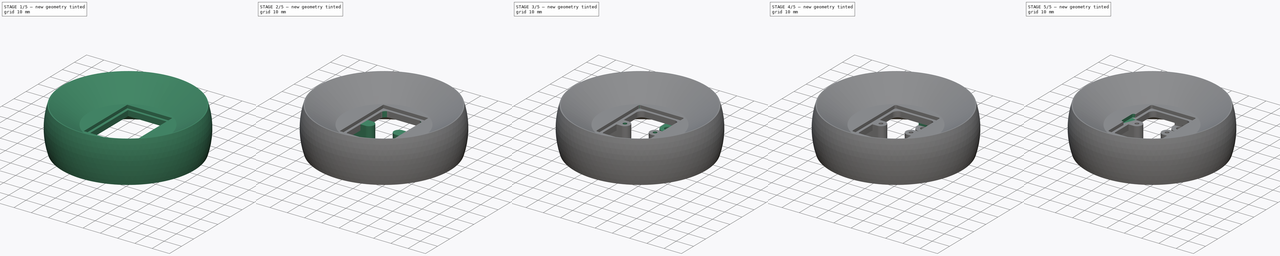
[diagram: build sequence overview — one tinted view per stage of 5, left to right]
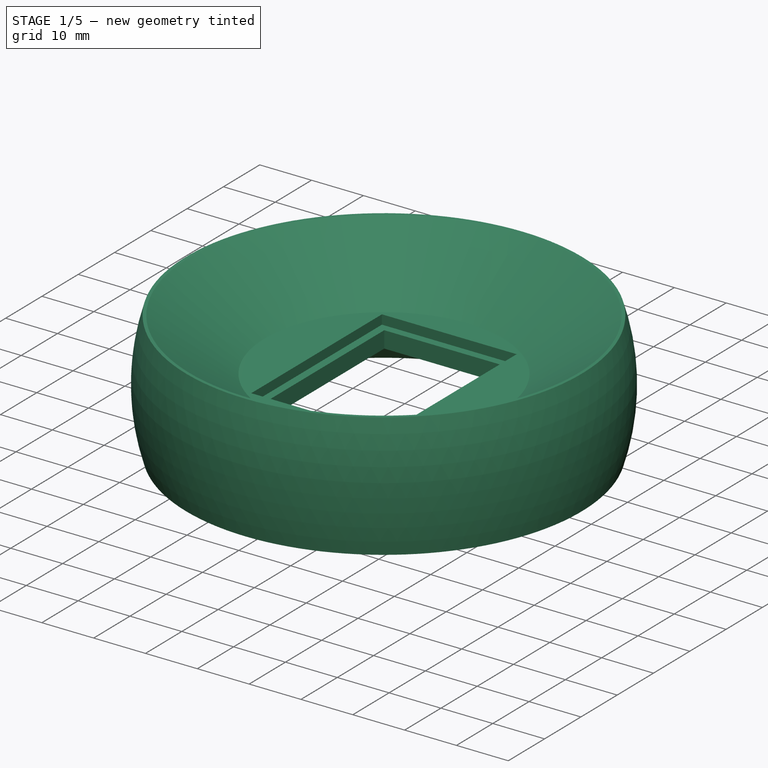
[diagram: stage 1 of 5 — iso view after this stage's code; geometry added in this stage tinted green]
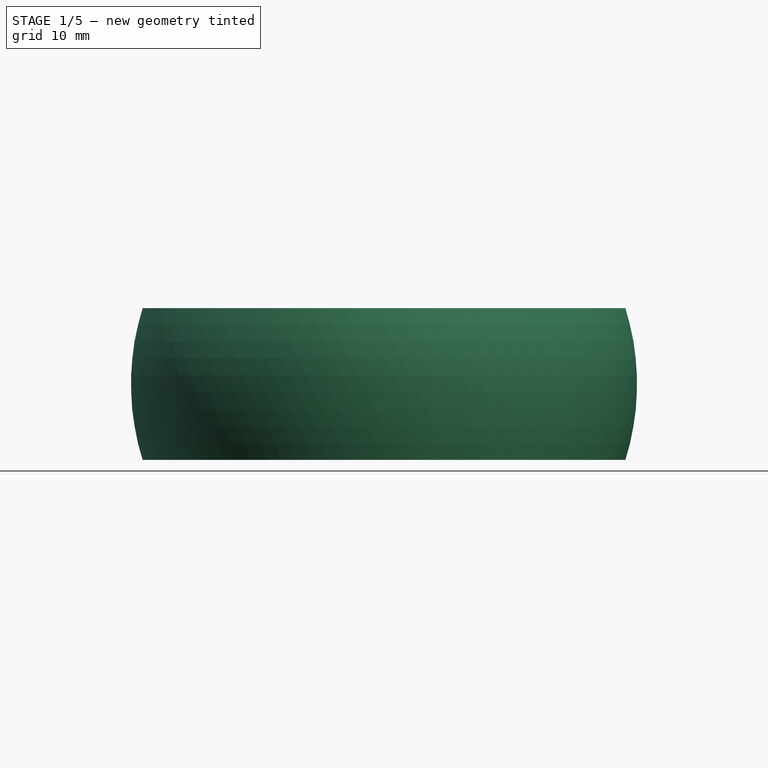
[diagram: stage 1 of 5 — front view after this stage's code; geometry added in this stage tinted green]
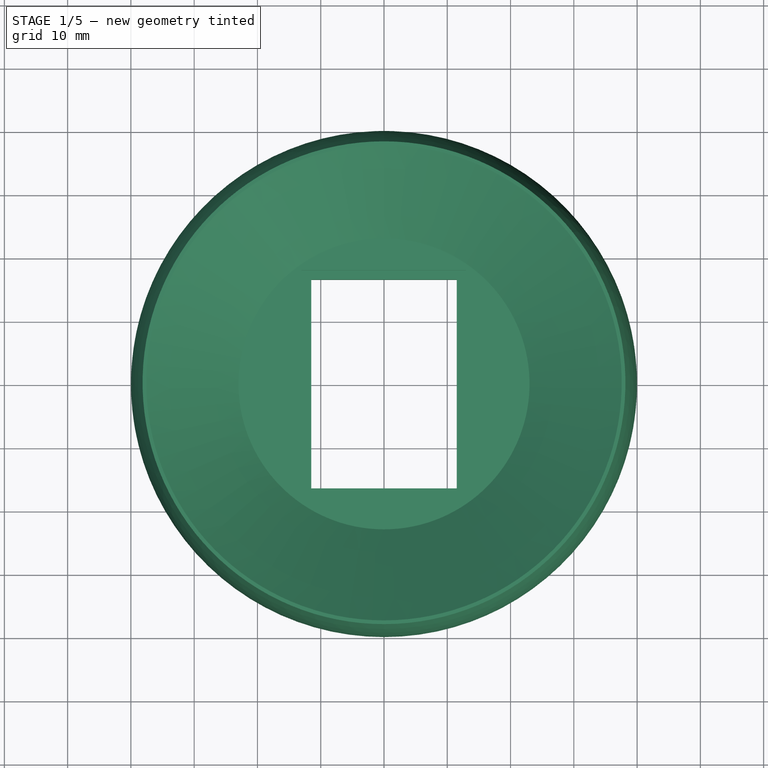
[diagram: stage 1 of 5 — top view after this stage's code; geometry added in this stage tinted green]
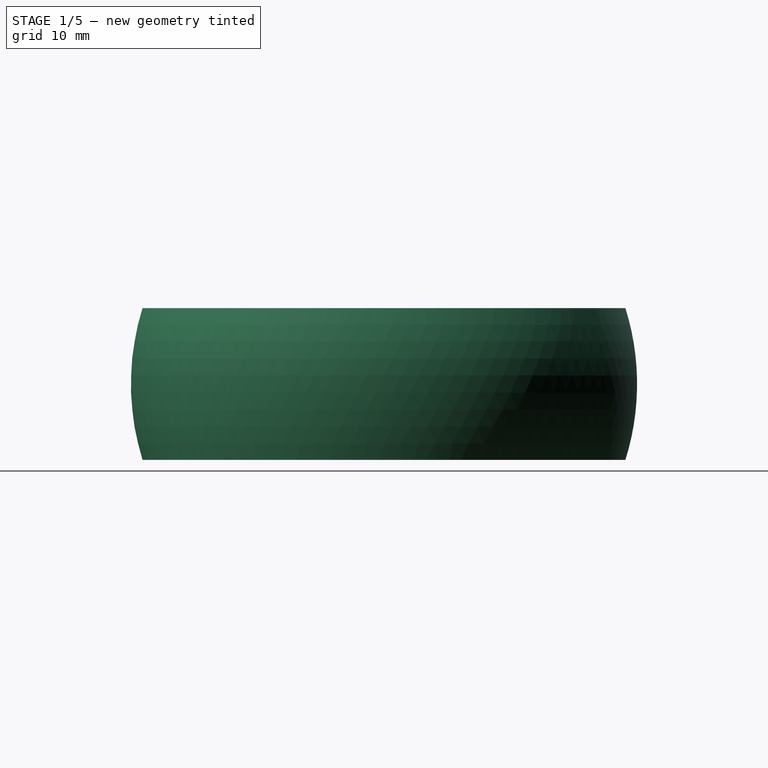
[diagram: stage 1 of 5 — right view after this stage's code; geometry added in this stage tinted green]
FCSTD DOCUMENT  (FreeCAD 1.0R39319 (Git))
Label: 5x2IRLED_Eyeball
License: All rights reserved
LicenseURL: https://en.wikipedia.org/wiki/All_rights_reserved
objects: Sketcher::SketchObject×9, PartDesign::Pocket×5, PartDesign::Fillet×4, PartDesign::Pad×3, PartDesign::Mirrored×2, PartDesign::CoordinateSystem×2, PartDesign::Revolution×1, PartDesign::Body×1, App::Part×1
note: 64 computed .brp shape members not serialized (recipe doc carries the construction recipe); baked Part::Feature solids carry a one-line shape summary decoded from their .brp

FEATURE [Sketcher::SketchObject] Sketch
  ArcFitTolerance = 1e-06
  AttachmentSupport = -> [YZ_Plane001]
  FullyConstrained = true
  MakeInternals = false
  MapMode = 5
  Placement = pos=(0,0,0) rot=(0.57735,0.57735,0.57735;2.0944rad)
  sketch-geometry (9):
    g0: ArcOfCircle CenterX=0 CenterY=0 CenterZ=0 NormalX=0 NormalY=0 NormalZ=1 AngleXU=0 Radius=40 StartAngle=5.97849 EndAngle=6.58788
    g1: LineSegment StartX=38.1576 StartY=12 StartZ=0 EndX=37.5671 EndY=12 EndZ=0
    g2: LineSegment StartX=37.5671 StartY=12 StartZ=0 EndX=23 EndY=1.8 EndZ=0
    g3: LineSegment StartX=23 StartY=1.8 StartZ=0 EndX=0 EndY=1.8 EndZ=0
    g4: LineSegment StartX=0 StartY=1.8 StartZ=0 EndX=0 EndY=-3.2 EndZ=0
    g5: LineSegment StartX=0 StartY=-3.2 StartZ=0 EndX=23 EndY=-3.2 EndZ=0
    g6: LineSegment StartX=23 StartY=-3.2 StartZ=0 EndX=35.5677 EndY=-12 EndZ=0
    g7: LineSegment StartX=35.5677 StartY=-12 StartZ=0 EndX=38.1576 EndY=-12 EndZ=0
    g8: LineSegment [constr] StartX=23 StartY=1.8 StartZ=0 EndX=23 EndY=-3.2 EndZ=0
  constraints (26):
    c: Coincident(g0,g-1)
    c: Radius(g0) = 40
    c: Coincident(g0,g1)
    c: Horizontal(g1)
    c: Coincident(g1,g2)
    c: Coincident(g2,g3)
    c: PointOnObject(g3,g-2)
    c: Horizontal(g3)
    c: Coincident(g3,g4)
    c: PointOnObject(g4,g-2)
    c: Coincident(g4,g5)
    c: Horizontal(g5)
    c: Coincident(g5,g6)
    c: Coincident(g6,g7)
    c: Coincident(g7,g0)
    c: Horizontal(g7)
    c: Distance(g7,g1) = 24
    c: DistanceX(g3,g3) = 23
    c: Coincident(g8,g2)
    c: Coincident(g8,g5)
    c: Vertical(g8)
    c: Distance(g5,g3) = 5
    c: Angle(g6,g7) = 0.610865
    c: Angle(g3,g2) = 0.610865
    c: Distance(g3,g-1) = 1.8
    c: Distance(g1,g-1) = 12
FEATURE [PartDesign::Revolution] Revolution
  Angle = 360
  Angle2 = 60
  Axis = (0,0,1)
  Base = (0,0,0)
  Placement = pos=(0,0,0) rot=(1,1,1;2.0944rad)
  Profile = -> Sketch
  ReferenceAxis = -> Sketch [V_Axis]
  Refine = true
  Reversed = true
  Suppressed = false
  Type = 0
FEATURE [Sketcher::SketchObject] Sketch001
  ArcFitTolerance = 1e-06
  AttachmentSupport = -> [Revolution]
  FullyConstrained = true
  MakeInternals = false
  MapMode = 5
  Placement = pos=(-4e-16,0,1.8) rot=(0,0,-1;1.5708rad)
  sketch-geometry (4):
    g0: LineSegment StartX=-18 StartY=13 StartZ=0 EndX=-18 EndY=-13 EndZ=0
    g1: LineSegment StartX=-18 StartY=-13 StartZ=0 EndX=18 EndY=-13 EndZ=0
    g2: LineSegment StartX=18 StartY=-13 StartZ=0 EndX=18 EndY=13 EndZ=0
    g3: LineSegment StartX=18 StartY=13 StartZ=0 EndX=-18 EndY=13 EndZ=0
  constraints (10):
    c: Coincident(g0,g1)
    c: Coincident(g1,g2)
    c: Coincident(g2,g3)
    c: Coincident(g3,g0)
    c: Vertical(g2)
    c: Horizontal(g1)
    c: Distance(g2,g0) = 36
    c: Distance(g3,g1) = 26
    c: Symmetric(g0,g2,g-2)
    c: Symmetric(g0,g0,g-1)
FEATURE [PartDesign::Pocket] Pocket
  BaseFeature = -> Revolution
  Direction = (0,0,-1)
  Length = 1.8
  Length2 = 5
  Placement = pos=(0,0,0) rot=(1,1,1;2.0944rad)
  Profile = -> Sketch001
  ReferenceAxis = -> Sketch001 [N_Axis]
  Refine = true
  Suppressed = false
  Type = 0
FEATURE [Sketcher::SketchObject] Sketch002
  ArcFitTolerance = 1e-06
  AttachmentSupport = -> [Pocket]
  ExternalGeometry = -> [Pocket]
  FullyConstrained = true
  MakeInternals = false
  MapMode = 5
  Placement = pos=(0,0,-4.4e-15) rot=(0,0,-1;1.5708rad)
  sketch-geometry (5):
    g0: LineSegment StartX=-16.5 StartY=11.5 StartZ=0 EndX=-16.5 EndY=-11.5 EndZ=0
    g1: LineSegment StartX=-16.5 StartY=-11.5 StartZ=0 EndX=16.5 EndY=-11.5 EndZ=0
    g2: LineSegment StartX=16.5 StartY=-11.5 StartZ=0 EndX=16.5 EndY=11.5 EndZ=0
    g3: LineSegment StartX=16.5 StartY=11.5 StartZ=0 EndX=-16.5 EndY=11.5 EndZ=0
    g4: Circle [constr] CenterX=13.5 CenterY=0 CenterZ=0 NormalX=0 NormalY=0 NormalZ=1 AngleXU=0 Radius=2.5
  constraints (15):
    c: Coincident(g0,g1)
    c: Coincident(g1,g2)
    c: Coincident(g2,g3)
    c: Coincident(g3,g0)
    c: Vertical(g0)
    c: Vertical(g2)
    c: Horizontal(g1)
    c: Horizontal(g3)
    c: Distance(g0,g-6) = 1.5
    c: Distance(g-4,g2) = 1.5
    c: Distance(g-3,g3) = 1.5
    c: Distance(g-5,g1) = 1.5
    c: PointOnObject(g4,g-1)
    c: DistanceX(g-1,g4) = 13.5
    c: Diameter(g4) = 5
FEATURE [PartDesign::Pocket] Pocket001
  BaseFeature = -> Pocket
  Direction = (0,0,-1)
  Length = 5
  Length2 = 5
  Placement = pos=(0,0,0) rot=(1,1,1;2.0944rad)
  Profile = -> Sketch002
  ReferenceAxis = -> Sketch002 [N_Axis]
  Refine = true
  Suppressed = false
  Type = 1
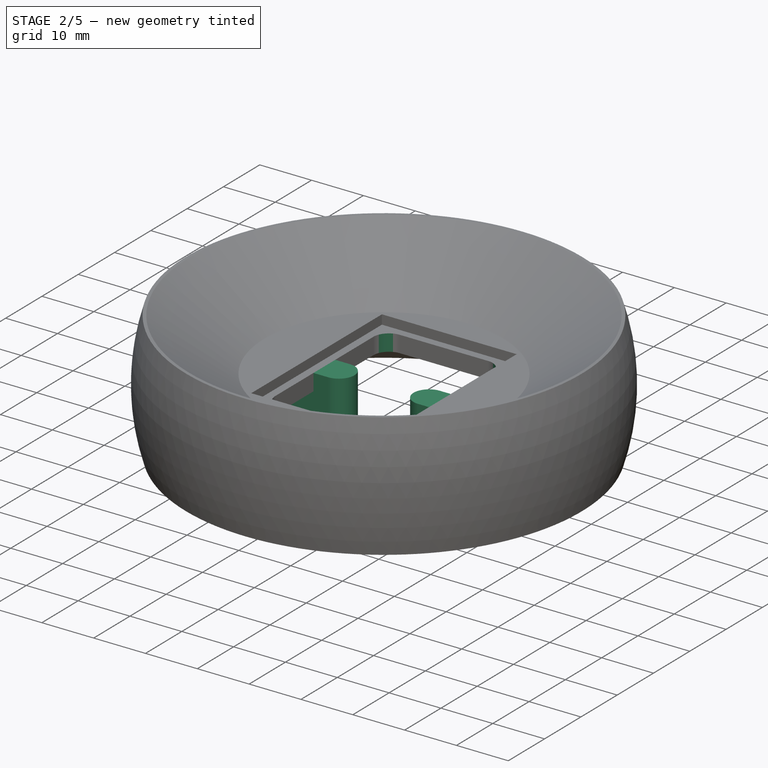
[diagram: stage 2 of 5 — iso view after this stage's code; geometry added in this stage tinted green]
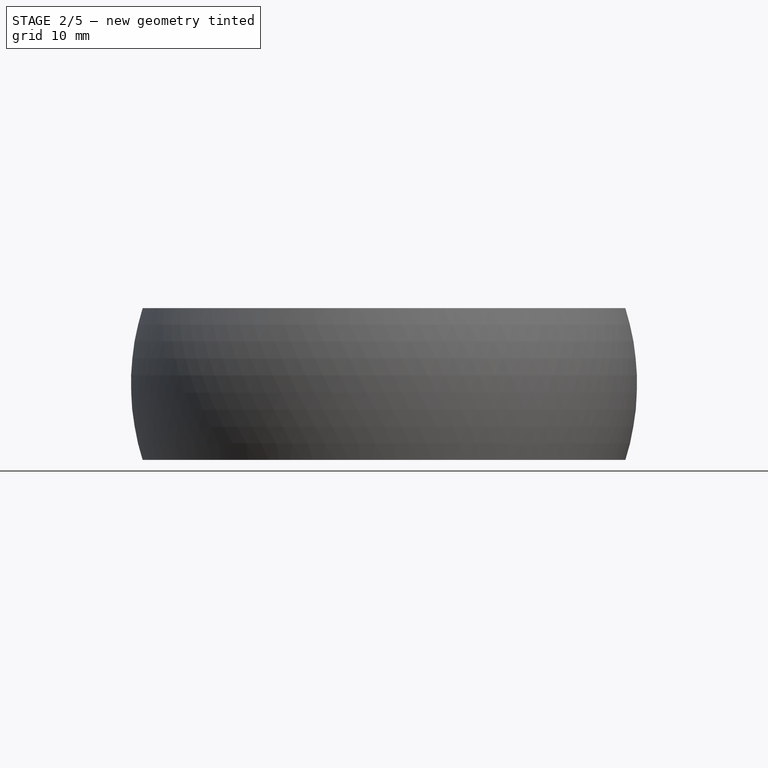
[diagram: stage 2 of 5 — front view after this stage's code; geometry added in this stage tinted green]
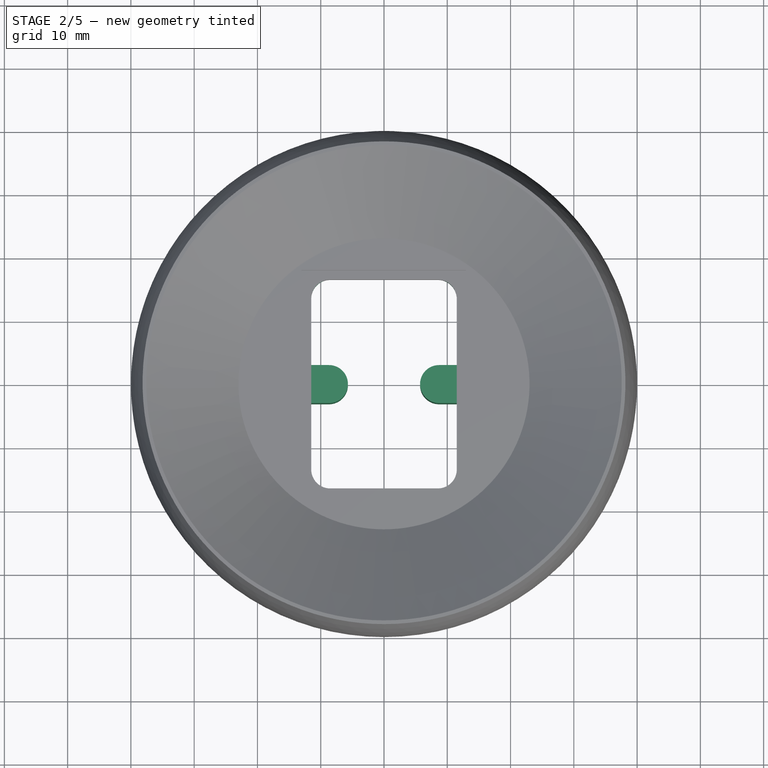
[diagram: stage 2 of 5 — top view after this stage's code; geometry added in this stage tinted green]
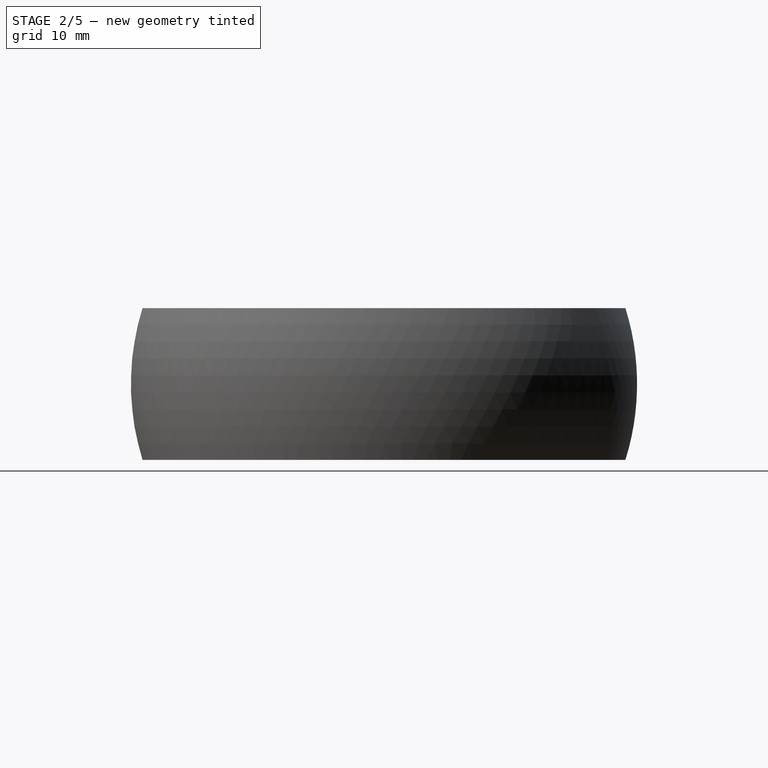
[diagram: stage 2 of 5 — right view after this stage's code; geometry added in this stage tinted green]
FEATURE [Sketcher::SketchObject] Sketch003
  ArcFitTolerance = 1e-06
  AttachmentSupport = -> [Pocket001]
  ExternalGeometry = -> [Pocket001]
  FullyConstrained = true
  MakeInternals = false
  MapMode = 5
  Placement = pos=(0,0,-4.4e-15) rot=(0,0,-1;1.5708rad)
  sketch-geometry (4):
    g0: LineSegment StartX=3 StartY=35.441 StartZ=0 EndX=3 EndY=8.7 EndZ=0
    g1: ArcOfCircle CenterX=0 CenterY=8.7 CenterZ=0 NormalX=0 NormalY=0 NormalZ=1 AngleXU=0 Radius=3 StartAngle=3.14159 EndAngle=6.28319
    g2: LineSegment StartX=-3 StartY=8.7 StartZ=0 EndX=-3 EndY=35.441 EndZ=0
    g3: ArcOfCircle CenterX=5.6e-15 CenterY=6.38282e-05 CenterZ=0 NormalX=0 NormalY=0 NormalZ=1 AngleXU=0 Radius=35.5676 StartAngle=1.48635 EndAngle=1.65524
  constraints (12):
    c: Vertical(g0)
    c: Tangent(g0,g1) = 1.5708
    c: Tangent(g1,g2) = 1.5708
    c: Vertical(g2)
    c: Radius(g1) = 3
    c: DistanceY(g-1,g1) = 8.7
    c: PointOnObject(g1,g-2)
    c: Coincident(g3,g2)
    c: Coincident(g3,g0)
    c: Tangent(g3,g-3)
    c: PointOnObject(g0,g-3)
    c: PointOnObject(g2,g-3)
FEATURE [PartDesign::Pad] Pad
  BaseFeature = -> Pocket001
  Direction = (0,0,1)
  Length = 10
  Length2 = 10
  Placement = pos=(0,0,0) rot=(1,1,1;2.0944rad)
  Profile = -> Sketch003
  ReferenceAxis = -> Sketch003 [N_Axis]
  Refine = true
  Reversed = true
  Suppressed = false
  Type = 3
  UpToFace = -> Pocket001 [Face2]
FEATURE [PartDesign::Mirrored] Mirrored
  BaseFeature = -> Pad
  MirrorPlane = -> YZ_Plane001
  Originals = -> [Pad]
  Placement = pos=(0,0,0) rot=(1,1,1;2.0944rad)
  Refine = true
  Suppressed = false
  TransformMode = 0
FEATURE [PartDesign::Fillet] Fillet
  Base = -> Mirrored [Edge68,Edge65,Edge56,Edge46]
  BaseFeature = -> Mirrored
  Placement = pos=(0,0,0) rot=(1,1,1;2.0944rad)
  Radius = 3
  Refine = true
  SupportTransform = false
  Suppressed = false
  UseAllEdges = false
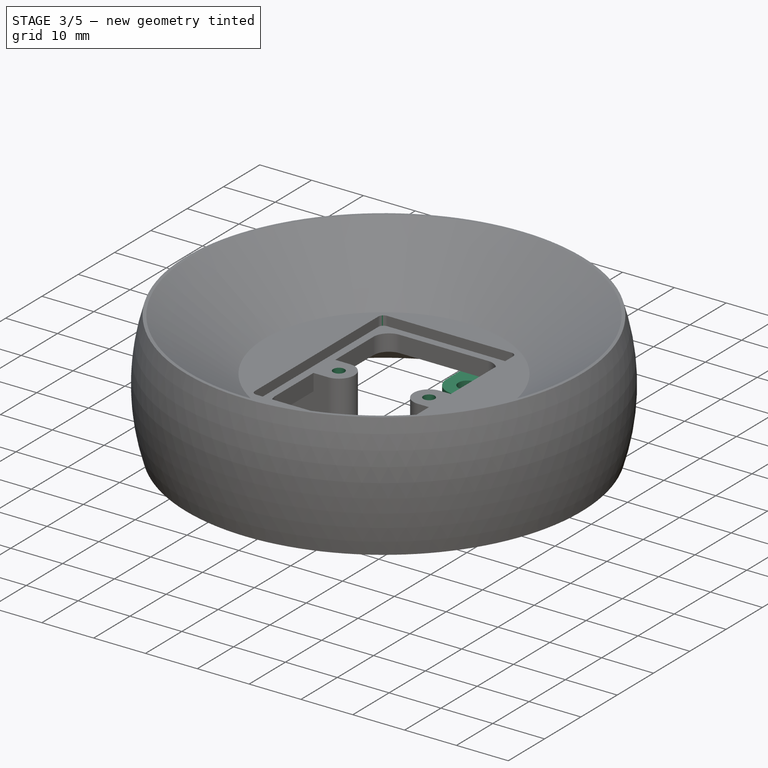
[diagram: stage 3 of 5 — iso view after this stage's code; geometry added in this stage tinted green]
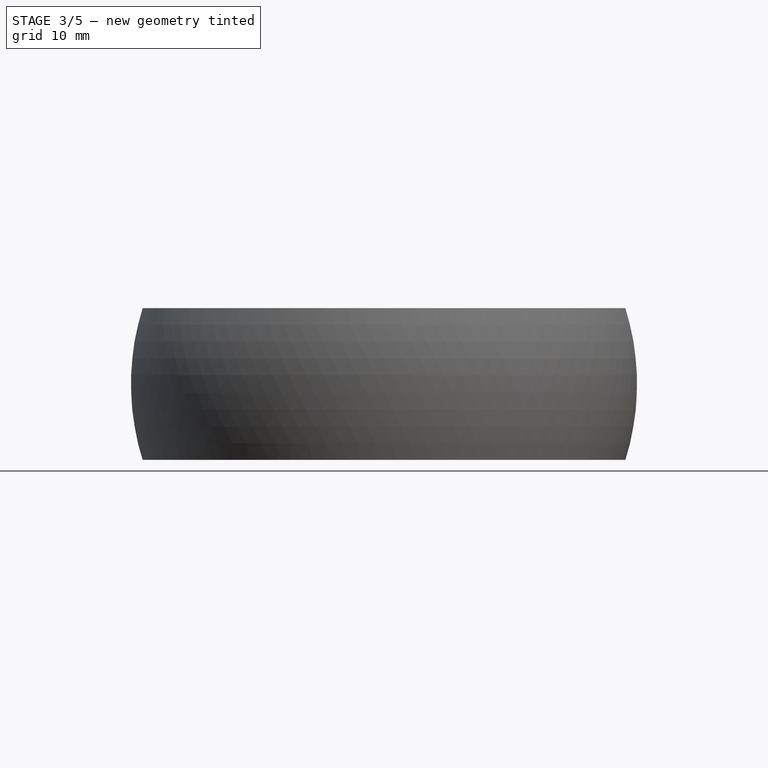
[diagram: stage 3 of 5 — front view after this stage's code; geometry added in this stage tinted green]
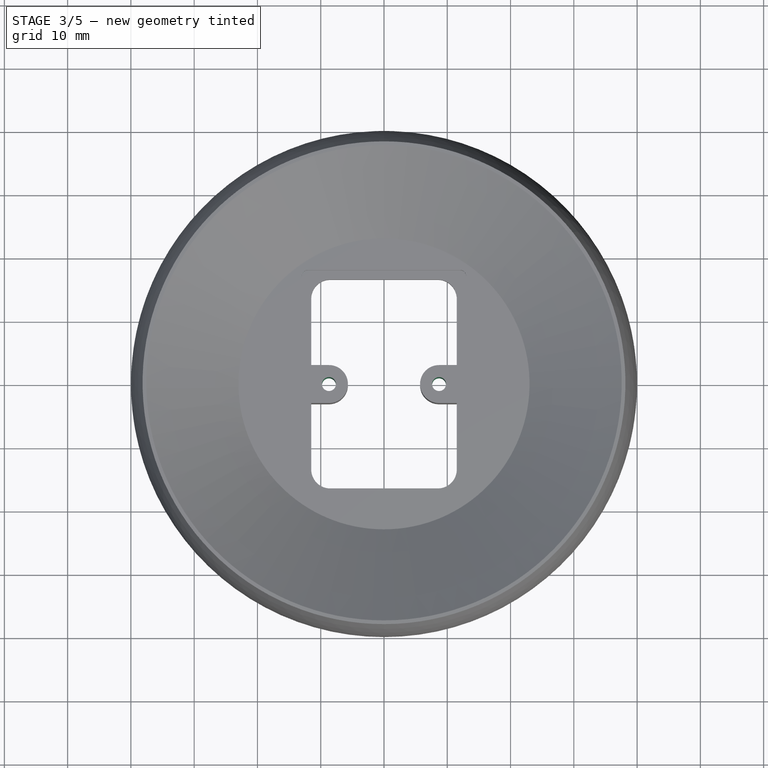
[diagram: stage 3 of 5 — top view after this stage's code; geometry added in this stage tinted green]
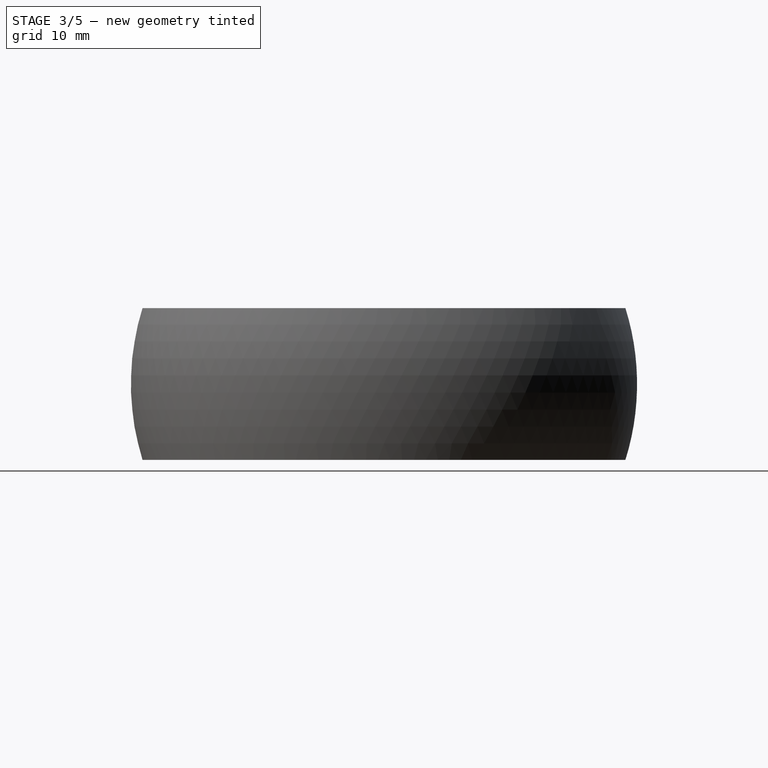
[diagram: stage 3 of 5 — right view after this stage's code; geometry added in this stage tinted green]
FEATURE [PartDesign::Fillet] Fillet001
  Base = -> Fillet [Edge64,Edge63,Edge68,Edge66]
  BaseFeature = -> Fillet
  Placement = pos=(0,0,0) rot=(1,1,1;2.0944rad)
  Radius = 1
  Refine = true
  SupportTransform = false
  Suppressed = false
  UseAllEdges = false
FEATURE [Sketcher::SketchObject] Sketch004
  ArcFitTolerance = 1e-06
  AttachmentSupport = -> [Fillet001]
  ExternalGeometry = -> [Fillet001]
  FullyConstrained = true
  MakeInternals = false
  MapMode = 5
  Placement = pos=(0,0,-4.4e-15) rot=(0,0,-1;1.5708rad)
  sketch-geometry (2):
    g0: Circle CenterX=0 CenterY=8.7 CenterZ=0 NormalX=0 NormalY=0 NormalZ=1 AngleXU=0 Radius=1.1
    g1: Circle CenterX=0 CenterY=-8.7 CenterZ=0 NormalX=0 NormalY=0 NormalZ=1 AngleXU=0 Radius=1.1
  constraints (4):
    c: Coincident(g0,g-3)
    c: Coincident(g1,g-4)
    c: Diameter(g0) = 2.2
    c: Diameter(g1) = 2.2
FEATURE [PartDesign::Pocket] Pocket002
  BaseFeature = -> Fillet001
  Direction = (0,0,-1)
  Length = 5
  Length2 = 5
  Placement = pos=(0,0,0) rot=(1,1,1;2.0944rad)
  Profile = -> Sketch004
  ReferenceAxis = -> Sketch004 [N_Axis]
  Refine = true
  Suppressed = false
  Type = 1
FEATURE [Sketcher::SketchObject] Sketch005
  ArcFitTolerance = 1e-06
  AttachmentSupport = -> [Pocket002]
  ExternalGeometry = -> [Pocket002]
  FullyConstrained = true
  MakeInternals = false
  MapMode = 5
  Placement = pos=(2.6e-15,0,-12) rot=(0.707107,0.707107,0;3.14159rad)
  sketch-geometry (6):
    g0: LineSegment StartX=35.5677 StartY=-1.363e-13 StartZ=0 EndX=24.75 EndY=-1.363e-13 EndZ=0
    g1: ArcOfCircle CenterX=23 CenterY=0 CenterZ=0 NormalX=0 NormalY=0 NormalZ=1 AngleXU=0 Radius=1.75 StartAngle=1.0472 EndAngle=6.28319
    g2: LineSegment StartX=23.875 StartY=1.51554 StartZ=0 EndX=25 EndY=3.4641 EndZ=0
    g3: ArcOfCircle CenterX=23 CenterY=0 CenterZ=0 NormalX=0 NormalY=0 NormalZ=1 AngleXU=0 Radius=4 StartAngle=1.0472 EndAngle=4.71239
    g4: LineSegment StartX=23 StartY=-4 StartZ=0 EndX=35.3421 EndY=-4 EndZ=0
    g5: ArcOfCircle CenterX=9.30302e-06 CenterY=-5.24781e-07 CenterZ=0 NormalX=0 NormalY=0 NormalZ=1 AngleXU=0 Radius=35.5677 StartAngle=6.17049 EndAngle=6.28319
  constraints (17):
    c: Horizontal(g0)
    c: Perpendicular(g0,g1) = 4.71239
    c: Coincident(g1,g2)
    c: Perpendicular(g2,g3) = 1.5708
    c: Horizontal(g4)
    c: Coincident(g1,g3)
    c: PointOnObject(g0,g-3)
    c: PointOnObject(g4,g-3)
    c: Radius(g1) = 1.75
    c: Radius(g3) = 4
    c: PointOnObject(g1,g-1)
    c: Tangent(g3,g4) = -1.5708
    c: Angle(g0,g2) = 1.0472
    c: DistanceX(g-1,g1) = 23
    c: Coincident(g5,g0)
    c: Coincident(g5,g4)
    c: Tangent(g5,g-3)
FEATURE [PartDesign::Pad] Pad001
  BaseFeature = -> Pocket002
  Direction = (1.7e-15,0,-1)
  Length = 3
  Length2 = 10
  Placement = pos=(0,0,0) rot=(1,1,1;2.0944rad)
  Profile = -> Sketch005
  ReferenceAxis = -> Sketch005 [N_Axis]
  Refine = true
  Reversed = true
  Suppressed = false
  Type = 0
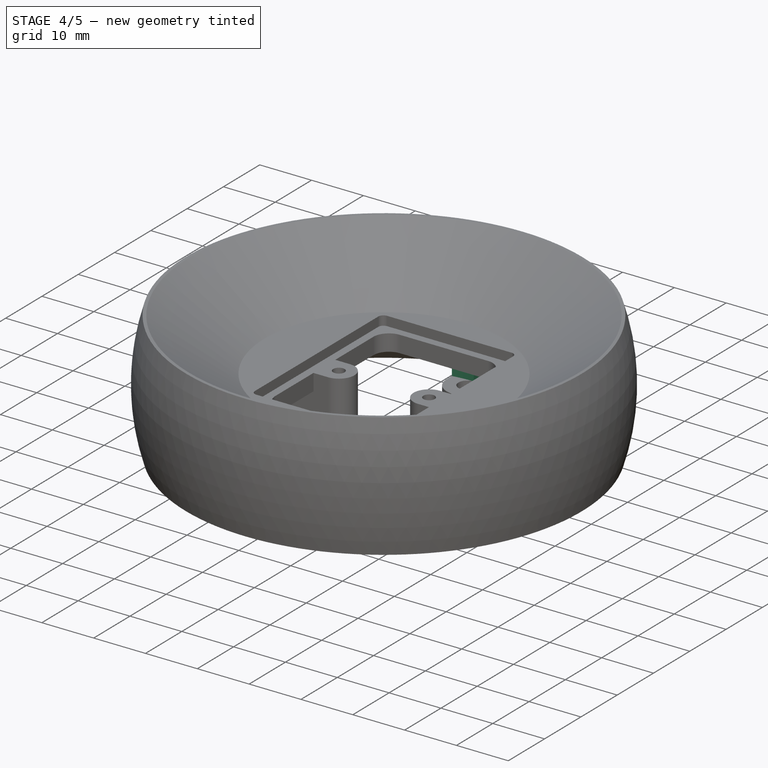
[diagram: stage 4 of 5 — iso view after this stage's code; geometry added in this stage tinted green]
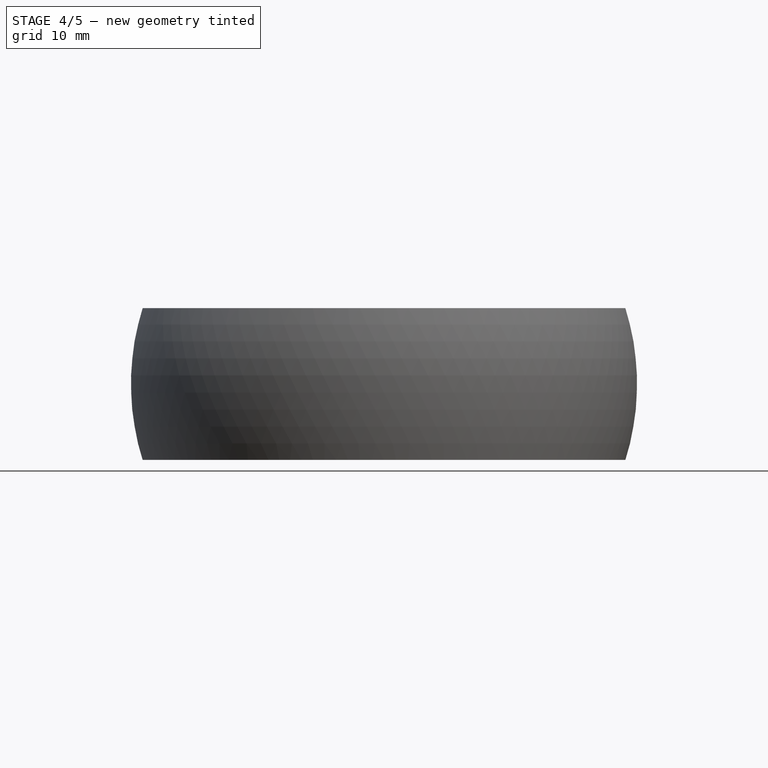
[diagram: stage 4 of 5 — front view after this stage's code; geometry added in this stage tinted green]
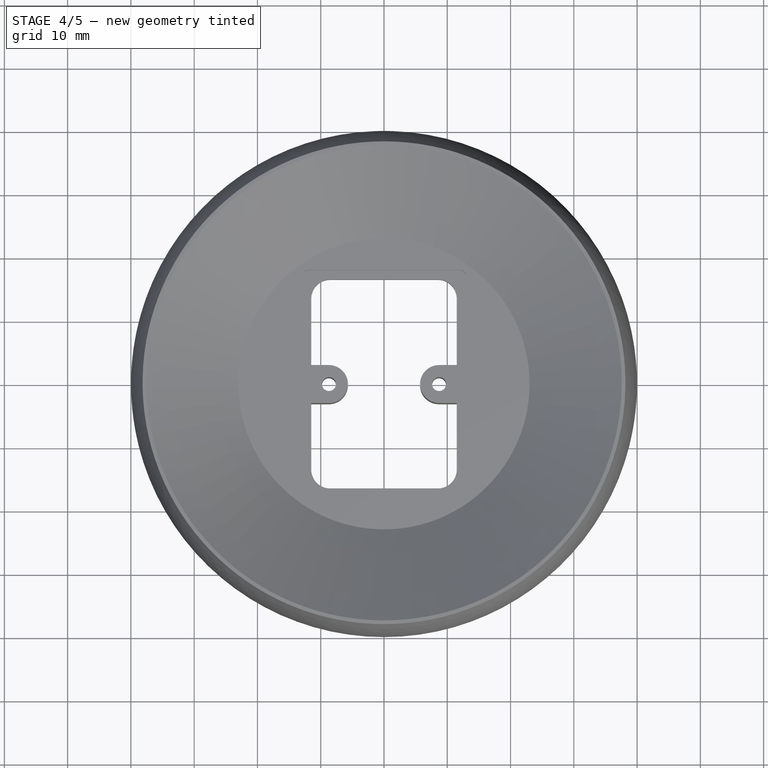
[diagram: stage 4 of 5 — top view after this stage's code; geometry added in this stage tinted green]
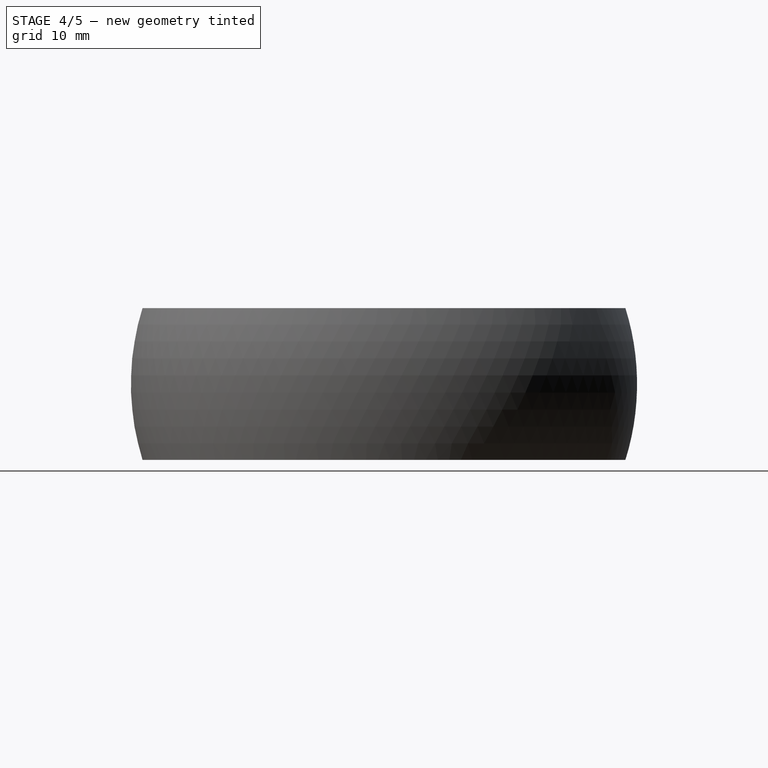
[diagram: stage 4 of 5 — right view after this stage's code; geometry added in this stage tinted green]
FEATURE [Sketcher::SketchObject] Sketch006
  ArcFitTolerance = 1e-06
  AttachmentSupport = -> [Pad001]
  ExternalGeometry = -> [Pad001]
  FullyConstrained = true
  MakeInternals = false
  MapMode = 5
  Placement = pos=(1.55e-14,0,-9) rot=(0,0,-1;1.5708rad)
  sketch-geometry (4):
    g0: LineSegment StartX=-24.75 StartY=-1.246e-13 StartZ=0 EndX=-31.2833 EndY=-1.228e-13 EndZ=0
    g1: ArcOfCircle CenterX=-4.4234e-12 CenterY=-1.386e-13 CenterZ=0 NormalX=0 NormalY=0 NormalZ=1 AngleXU=0 Radius=31.2833 StartAngle=3.14159 EndAngle=3.26981
    g2: LineSegment StartX=-31.0265 StartY=-4 StartZ=0 EndX=-24.4246 EndY=-4 EndZ=0
    g3: ArcOfCircle CenterX=-4.4234e-12 CenterY=-1.386e-13 CenterZ=0 NormalX=0 NormalY=0 NormalZ=1 AngleXU=0 Radius=24.75 StartAngle=3.14159 EndAngle=3.30392
  constraints (9):
    c: Coincident(g-4,g0)
    c: Coincident(g0,g-4)
    c: Perpendicular(g0,g1) = 1.5708
    c: Coincident(g1,g-5)
    c: Coincident(g1,g2)
    c: PointOnObject(g2,g-5)
    c: Coincident(g3,g2)
    c: Coincident(g3,g0)
    c: Coincident(g3,g1)
FEATURE [PartDesign::Pad] Pad002
  BaseFeature = -> Pad001
  Direction = (-2e-15,0,1)
  Length = 10
  Length2 = 10
  Placement = pos=(0,0,0) rot=(1,1,1;2.0944rad)
  Profile = -> Sketch006
  ReferenceAxis = -> Sketch006 [N_Axis]
  Refine = true
  Suppressed = false
  Type = 3
  UpToFace = -> Pad001 [Face33]
FEATURE [PartDesign::Mirrored] Mirrored001
  BaseFeature = -> Pad002
  MirrorPlane = -> XZ_Plane001
  Originals = -> [Pad001,Pad002]
  Placement = pos=(0,0,0) rot=(1,1,1;2.0944rad)
  Refine = true
  Suppressed = false
  TransformMode = 0
FEATURE [PartDesign::Fillet] Fillet002
  Base = -> Mirrored001 [Edge90,Edge5]
  BaseFeature = -> Mirrored001
  Placement = pos=(0,0,0) rot=(1,1,1;2.0944rad)
  Radius = 1
  Refine = true
  SupportTransform = false
  Suppressed = false
  UseAllEdges = false
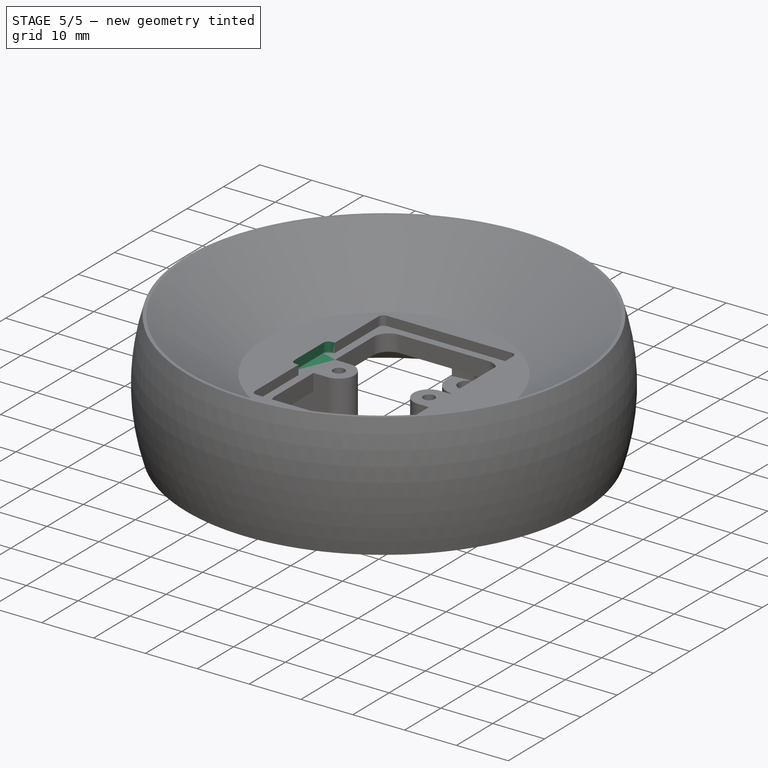
[diagram: stage 5 of 5 — iso view after this stage's code; geometry added in this stage tinted green]
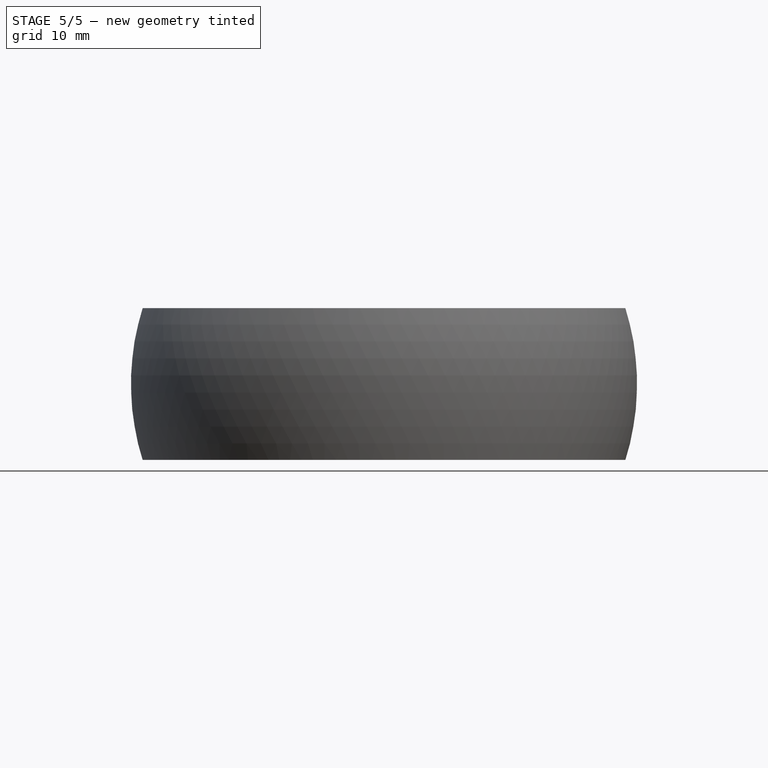
[diagram: stage 5 of 5 — front view after this stage's code; geometry added in this stage tinted green]
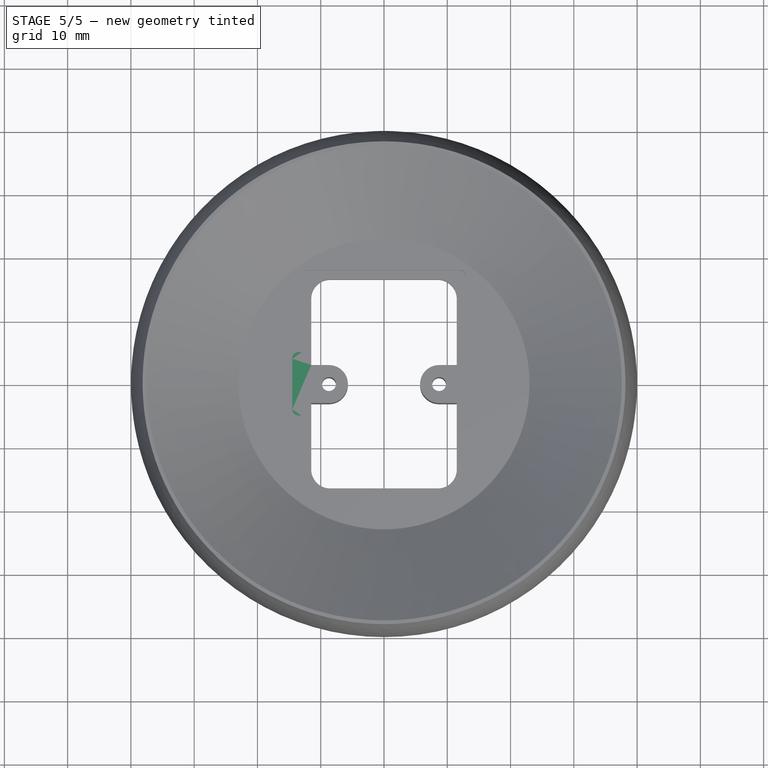
[diagram: stage 5 of 5 — top view after this stage's code; geometry added in this stage tinted green]
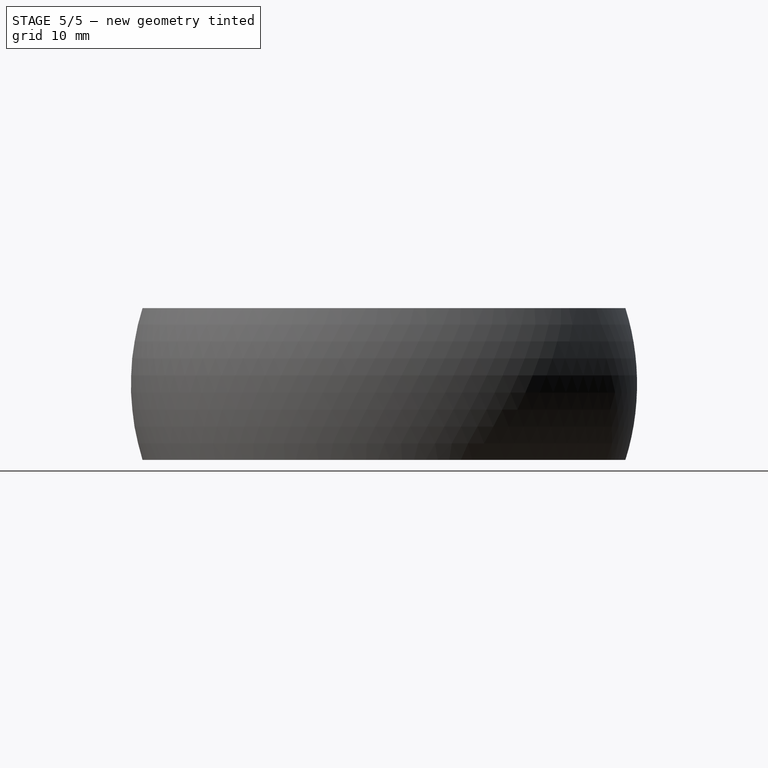
[diagram: stage 5 of 5 — right view after this stage's code; geometry added in this stage tinted green]
FEATURE [Sketcher::SketchObject] Sketch007
  ArcFitTolerance = 1e-06
  AttachmentSupport = -> [Fillet002]
  ExternalGeometry = -> [Fillet002]
  FullyConstrained = true
  MakeInternals = false
  MapMode = 5
  Placement = pos=(-4e-16,0,1.8) rot=(0,0,-1;1.5708rad)
  sketch-geometry (4):
    g0: LineSegment StartX=-5 StartY=-13 StartZ=0 EndX=-5 EndY=-14.5 EndZ=0
    g1: LineSegment StartX=-5 StartY=-14.5 StartZ=0 EndX=5 EndY=-14.5 EndZ=0
    g2: LineSegment StartX=5 StartY=-14.5 StartZ=0 EndX=5 EndY=-13 EndZ=0
    g3: LineSegment StartX=5 StartY=-13 StartZ=0 EndX=-5 EndY=-13 EndZ=0
  constraints (11):
    c: Coincident(g0,g1)
    c: Coincident(g1,g2)
    c: Coincident(g2,g3)
    c: Coincident(g3,g0)
    c: Vertical(g0)
    c: Vertical(g2)
    c: Horizontal(g1)
    c: PointOnObject(g0,g-3)
    c: Distance(g2,g0) = 10
    c: Distance(g3,g1) = 1.5
    c: Symmetric(g0,g2,g-2)
FEATURE [PartDesign::Pocket] Pocket003
  BaseFeature = -> Fillet002
  Direction = (2.3e-15,0,-1)
  Length = 0
  Length2 = 5
  Placement = pos=(0,0,0) rot=(1,1,1;2.0944rad)
  Profile = -> Sketch007
  ReferenceAxis = -> Sketch007 [N_Axis]
  Refine = true
  Suppressed = false
  Type = 3
  UpToFace = -> Fillet002 [Face30]
FEATURE [PartDesign::Fillet] Fillet003
  Base = -> Pocket003 [Edge154,Edge157]
  BaseFeature = -> Pocket003
  Placement = pos=(0,0,0) rot=(1,1,1;2.0944rad)
  Radius = 1
  Refine = true
  SupportTransform = false
  Suppressed = false
  UseAllEdges = false
FEATURE [Sketcher::SketchObject] Sketch008
  ArcFitTolerance = 1e-06
  AttachmentSupport = -> [Fillet003]
  ExternalGeometry = -> [Fillet003]
  FullyConstrained = true
  MakeInternals = false
  MapMode = 5
  Placement = pos=(2.6e-15,0,-12) rot=(0.707107,0.707107,0;3.14159rad)
  sketch-geometry (20):
    g0: LineSegment StartX=-30.25 StartY=-1.75 StartZ=0 EndX=-30.25 EndY=-0.75 EndZ=0
    g1: LineSegment StartX=-30.25 StartY=-0.75 StartZ=0 EndX=-29.75 EndY=-0.75 EndZ=0
    g2: LineSegment StartX=-29.75 StartY=-0.75 StartZ=0 EndX=-29.75 EndY=-1.75 EndZ=0
    g3: LineSegment StartX=-29.75 StartY=-1.75 StartZ=0 EndX=-28.75 EndY=-1.75 EndZ=0
    g4: LineSegment StartX=-28.75 StartY=-1.75 StartZ=0 EndX=-28.75 EndY=-2.25 EndZ=0
    g5: LineSegment StartX=-28.75 StartY=-2.25 StartZ=0 EndX=-29.75 EndY=-2.25 EndZ=0
    g6: LineSegment StartX=-29.75 StartY=-2.25 StartZ=0 EndX=-29.75 EndY=-3.25 EndZ=0
    g7: LineSegment StartX=-29.75 StartY=-3.25 StartZ=0 EndX=-30.25 EndY=-3.25 EndZ=0
    g8: LineSegment StartX=-30.25 StartY=-3.25 StartZ=0 EndX=-30.25 EndY=-2.25 EndZ=0
    g9: LineSegment StartX=-30.25 StartY=-2.25 StartZ=0 EndX=-31.25 EndY=-2.25 EndZ=0
    g10: LineSegment StartX=-31.25 StartY=-2.25 StartZ=0 EndX=-31.25 EndY=-1.75 EndZ=0
    g11: LineSegment StartX=-31.25 StartY=-1.75 StartZ=0 EndX=-30.25 EndY=-1.75 EndZ=0
    g12: LineSegment [constr] StartX=-31.25 StartY=-2 StartZ=0 EndX=-28.75 EndY=-2 EndZ=0
    g13: LineSegment [constr] StartX=-30 StartY=-0.75 StartZ=0 EndX=-30 EndY=-3.25 EndZ=0
    g14: LineSegment StartX=28.75 StartY=-1.75 StartZ=0 EndX=28.75 EndY=-2.25 EndZ=0
    g15: LineSegment StartX=28.75 StartY=-2.25 StartZ=0 EndX=31.25 EndY=-2.25 EndZ=0
    g16: LineSegment StartX=31.25 StartY=-2.25 StartZ=0 EndX=31.25 EndY=-1.75 EndZ=0
    g17: LineSegment StartX=31.25 StartY=-1.75 StartZ=0 EndX=28.75 EndY=-1.75 EndZ=0
    g18: LineSegment [constr] StartX=30 StartY=-1.75 StartZ=0 EndX=30 EndY=-2.25 EndZ=0
    g19: LineSegment [constr] StartX=28.75 StartY=-2 StartZ=0 EndX=31.25 EndY=-2 EndZ=0
  constraints (54):
    c: Vertical(g0)
    c: Coincident(g0,g1)
    c: Horizontal(g1)
    c: Coincident(g1,g2)
    c: Vertical(g2)
    c: Coincident(g2,g3)
    c: Horizontal(g3)
    c: Coincident(g3,g4)
    c: Coincident(g4,g5)
    c: Coincident(g5,g6)
    c: Vertical(g6)
    c: Coincident(g6,g7)
    c: Coincident(g7,g8)
    c: Vertical(g8)
    c: Coincident(g8,g9)
    c: Horizontal(g9)
    c: Coincident(g9,g10)
    c: Coincident(g10,g11)
    c: Coincident(g11,g0)
    c: Horizontal(g11)
    c: Horizontal(g5)
    c: Horizontal(g7)
    c: Vertical(g10)
    c: Vertical(g4)
    c: Symmetric(g10,g10,g12)
    c: Symmetric(g4,g4,g12)
    c: Horizontal(g12)
    c: Symmetric(g1,g1,g13)
    c: Symmetric(g7,g7,g13)
    c: Vertical(g13)
    c: Symmetric(g10,g3,g13)
    c: Symmetric(g7,g0,g12)
    c: DistanceX(g12,g12) = 2.5
    c: DistanceY(g13,g13) = 2.5
    c: Distance(g11,g9) = 0.5
    c: Distance(g2,g0) = 0.5
    c: Distance(g-3,g12) = 2
    c: Distance(g-2,g13) = 30
    c: Coincident(g14,g15)
    c: Coincident(g15,g16)
    c: Coincident(g16,g17)
    c: Coincident(g17,g14)
    c: Vertical(g14)
    c: Vertical(g16)
    c: Horizontal(g15)
    c: Horizontal(g17)
    c: Symmetric(g17,g17,g18)
    c: Symmetric(g15,g15,g18)
    c: Symmetric(g14,g14,g19)
    c: Symmetric(g16,g16,g19)
    c: DistanceY(g16,g16) = 0.5
    c: DistanceX(g17,g17) = 2.5
    c: Distance(g-1,g19) = 2
    c: Distance(g-2,g18) = 30
FEATURE [PartDesign::Pocket] Pocket004
  BaseFeature = -> Fillet003
  Direction = (0,0,1)
  Length = 1
  Length2 = 5
  Placement = pos=(0,0,0) rot=(1,1,1;2.0944rad)
  Profile = -> Sketch008
  ReferenceAxis = -> Sketch008 [N_Axis]
  Refine = true
  Suppressed = false
  Type = 0
FEATURE [PartDesign::Body] Body  label="5x2IRLED_Eyeball001"
  AllowCompound = false
  Group = -> [Sketch,Revolution,Sketch001,Pocket,Sketch002,Pocket001,Sketch003,Pad,Mirrored,Fillet,Fillet001,Sketch004,Pocket002,Sketch005,Pad001,Sketch006,Pad002,Mirrored001,Fillet002,Sketch007,Pocket003,Fillet003,Sketch008,Pocket004]
  Origin = -> Origin001
  Tip = -> Pocket004
FEATURE [PartDesign::CoordinateSystem] center
  AttacherType = Attacher::AttachEngine3D
FEATURE [PartDesign::CoordinateSystem] LCS_1
  AttacherType = Attacher::AttachEngine3D
  AttachmentSupport = -> [Pocket004]
  MapMode = 11
  Placement = pos=(8.7,0,-4e-15) rot=(0,0,1;0rad)
FEATURE [App::Part] Part  label="5x2IRLED_Eyeball"
  Group = -> [Body,center,LCS_1]
  Origin = -> Origin
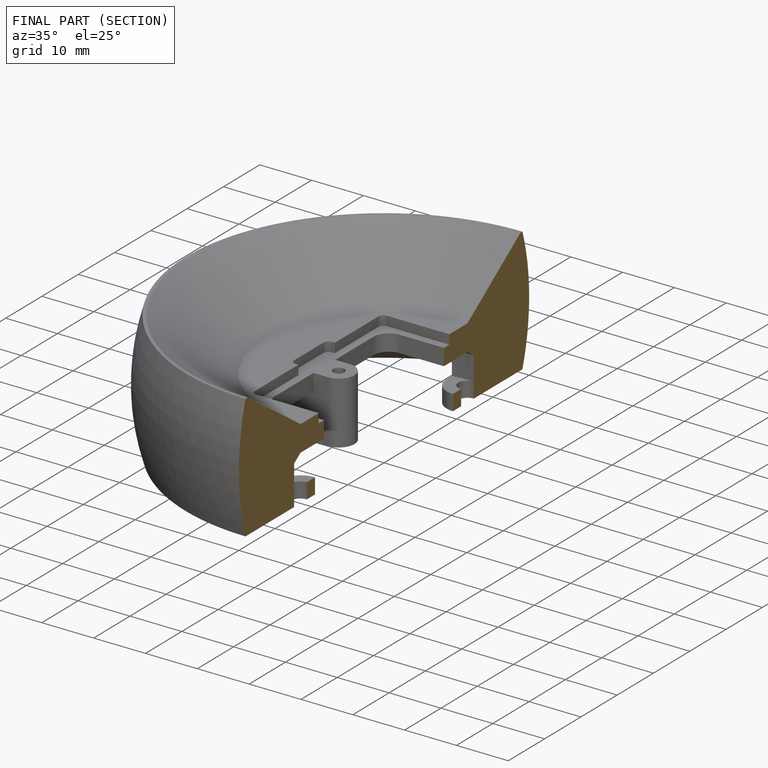
[diagram: finished part — half-section view (interior)]
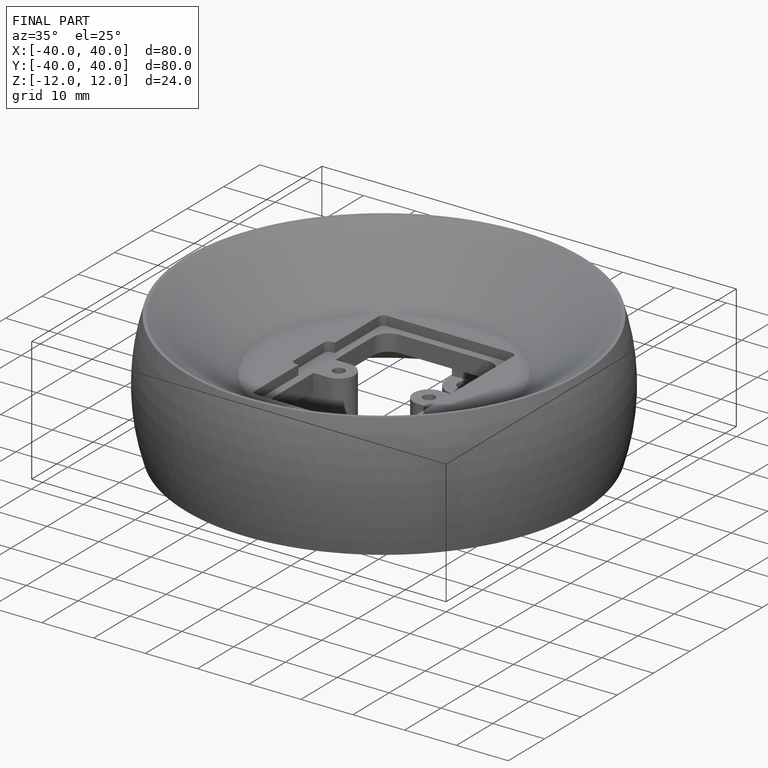
[diagram: finished part — iso view with bounding-box wireframe]
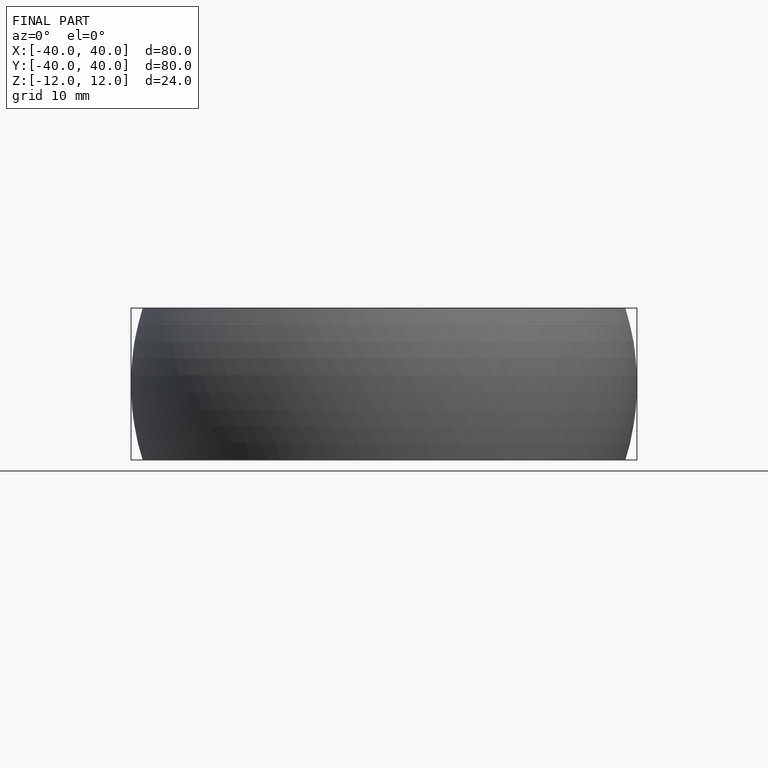
[diagram: finished part — front view with bounding-box wireframe]
